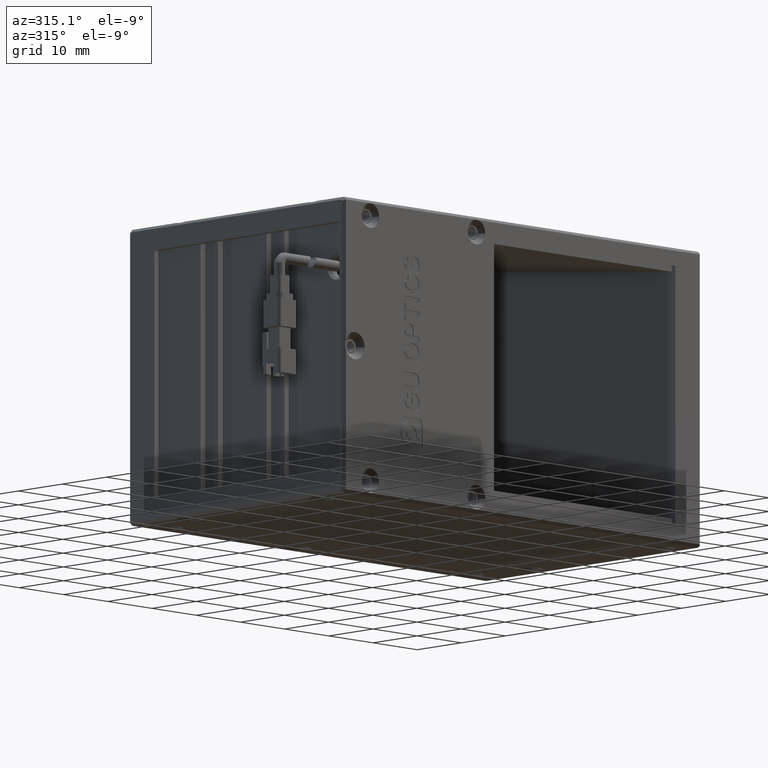
[diagram: clean part render]
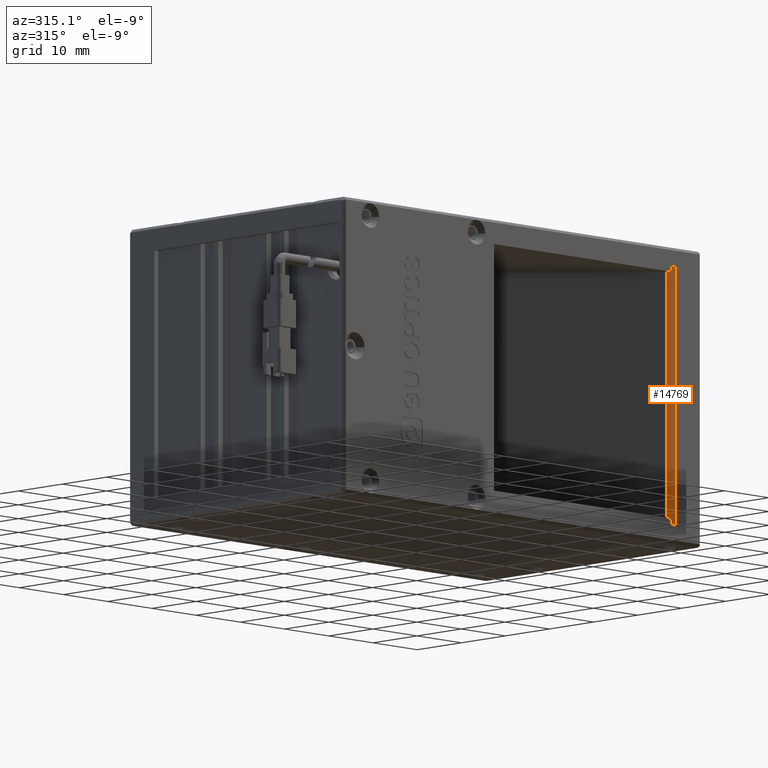
[diagram: same view with one face highlighted and labeled with its STEP entity id]
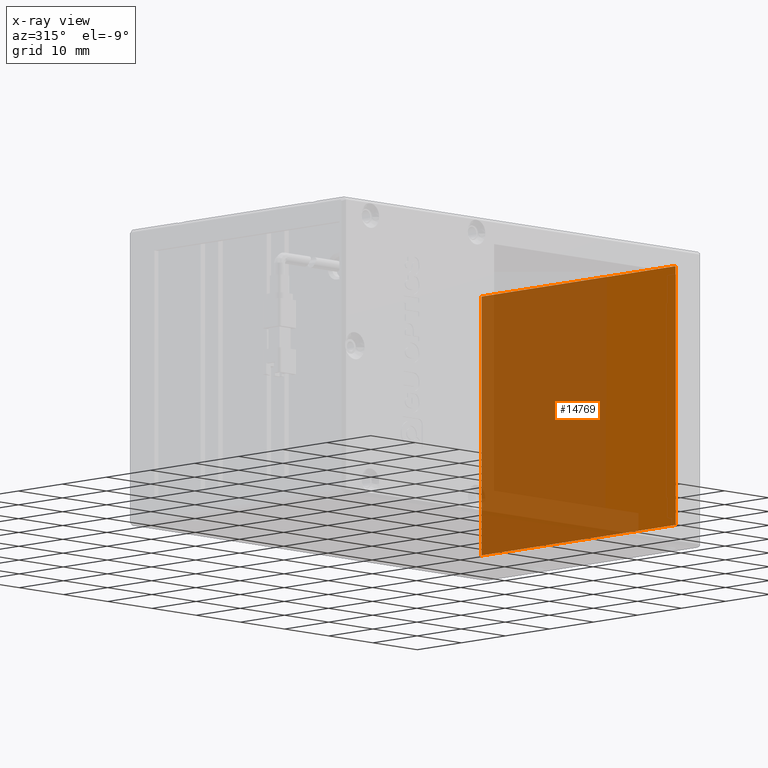
[diagram: x-ray of the same camera — body ghosted, the highlighted face saturated]
A machine part, auxiliary view. The second image highlights one B-rep face of the part: STEP entity #14769.
The next image is the same camera in x-ray: the body ghosted, the highlighted face saturated — about 66% of this face is hidden behind the body in this view.
In plain terms, the highlighted planar face has unit normal (1, -0, 0).
Its self-contained STEP definition (entity closure, byte-faithful):
#849 = EDGE_CURVE ( 'NONE', #18738, #23682, #8321, .T. ) ;
#1883 = LINE ( 'NONE', #23507, #19125 ) ;
#1950 = ORIENTED_EDGE ( 'NONE', *, *, #6356, .T. ) ;
#1976 = EDGE_CURVE ( 'NONE', #23682, #4370, #18011, .T. ) ;
#2367 = DIRECTION ( 'NONE',  ( 0.0000000000000000000, 0.0000000000000000000, 1.000000000000000000 ) ) ;
#3527 = CARTESIAN_POINT ( 'NONE',  ( 30.45909811852000400, -8.252652167981970900, -37.00000000000007100 ) ) ;
#3745 = ORIENTED_EDGE ( 'NONE', *, *, #6739, .F. ) ;
#4370 = VERTEX_POINT ( 'NONE', #26388 ) ;
#6356 = EDGE_CURVE ( 'NONE', #8990, #18738, #10082, .T. ) ;
#6429 = CARTESIAN_POINT ( 'NONE',  ( 30.45909811852000400, -9.132652167982000100, 5.839999999995000300 ) ) ;
#6739 = EDGE_CURVE ( 'NONE', #8990, #4370, #1883, .T. ) ;
#6801 = CARTESIAN_POINT ( 'NONE',  ( 30.45909811851999600, 13.74734783201900300, -36.99999999999999300 ) ) ;
#8321 = LINE ( 'NONE', #6801, #19551 ) ;
#8705 = DIRECTION ( 'NONE',  ( 0.0000000000000000000, 0.0000000000000000000, -1.000000000000000000 ) ) ;
#8990 = VERTEX_POINT ( 'NONE', #20732 ) ;
#10074 = DIRECTION ( 'NONE',  ( -0.0000000000000000000, -1.000000000000000000, -0.0000000000000000000 ) ) ;
#10082 = LINE ( 'NONE', #18553, #26584 ) ;
#10714 = CARTESIAN_POINT ( 'NONE',  ( 30.45909811851999600, 35.74734783201998300, -37.00000000000007100 ) ) ;
#10798 = FACE_OUTER_BOUND ( 'NONE', #23122, .T. ) ;
#11157 = AXIS2_PLACEMENT_3D ( 'NONE', #6429, #22133, #8705 ) ;
#12114 = VECTOR ( 'NONE', #2367, 1000.000000000000000 ) ;
#14769 = ADVANCED_FACE ( 'NONE', ( #10798 ), #26583, .F. ) ;
#17420 = ORIENTED_EDGE ( 'NONE', *, *, #849, .T. ) ;
#18011 = LINE ( 'NONE', #27040, #12114 ) ;
#18553 = CARTESIAN_POINT ( 'NONE',  ( 30.45909811851999600, 35.74734783202000400, -16.00000000000250100 ) ) ;
#18738 = VERTEX_POINT ( 'NONE', #10714 ) ;
#19125 = VECTOR ( 'NONE', #10074, 1000.000000000000000 ) ;
#19551 = VECTOR ( 'NONE', #22490, 1000.000000000000000 ) ;
#20732 = CARTESIAN_POINT ( 'NONE',  ( 30.45909811851999600, 35.74734783201997600, 4.999999999995046600 ) ) ;
#20965 = ORIENTED_EDGE ( 'NONE', *, *, #1976, .T. ) ;
#22133 = DIRECTION ( 'NONE',  ( 1.000000000000000000, -0.0000000000000000000, 0.0000000000000000000 ) ) ;
#22490 = DIRECTION ( 'NONE',  ( -0.0000000000000000000, -1.000000000000000000, -0.0000000000000000000 ) ) ;
#23122 = EDGE_LOOP ( 'NONE', ( #3745, #1950, #17420, #20965 ) ) ;
#23507 = CARTESIAN_POINT ( 'NONE',  ( 30.45909811851999600, 13.74734783201900300, 4.999999999994999600 ) ) ;
#23682 = VERTEX_POINT ( 'NONE', #3527 ) ;
#26388 = CARTESIAN_POINT ( 'NONE',  ( 30.45909811852000400, -8.252652167981979800, 4.999999999995067900 ) ) ;
#26583 = PLANE ( 'NONE',  #11157 ) ;
#26584 = VECTOR ( 'NONE', #27432, 1000.000000000000000 ) ;
#27040 = CARTESIAN_POINT ( 'NONE',  ( 30.45909811852000400, -8.252652167981999300, -16.00000000000249800 ) ) ;
#27432 = DIRECTION ( 'NONE',  ( 0.0000000000000000000, 0.0000000000000000000, -1.000000000000000000 ) ) ;